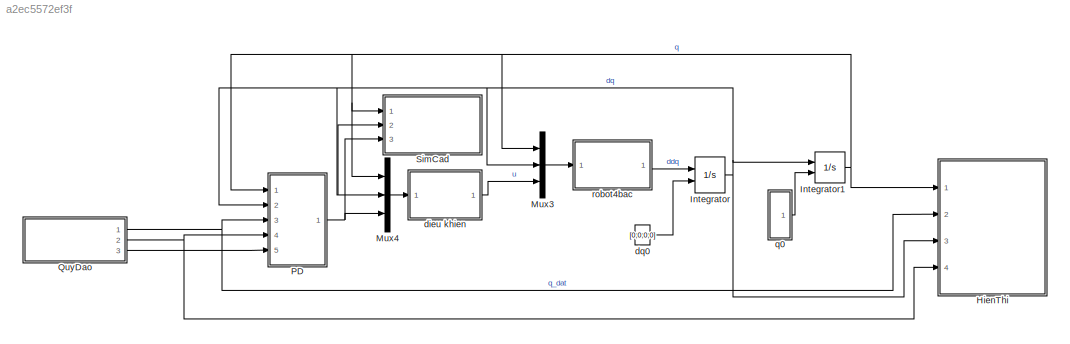
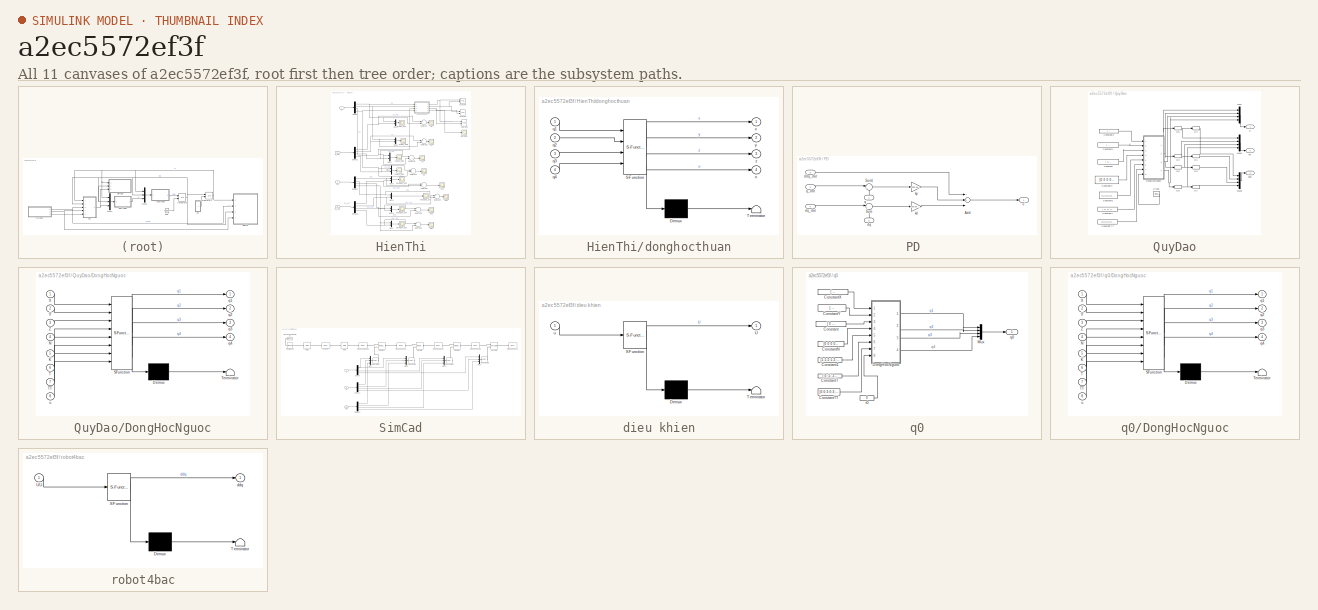
[diagram: thumbnail index - all 11 canvases of the model, root first then tree order]
MODEL slx_a2ec5572ef3f
KIND model
CONFIG AbsTol = auto
CONFIG FixedStep = auto
CONFIG MaxStep = auto
CONFIG MinStep = auto
CONFIG RelTol = 1e-3
CONFIG SampleTimeConstraint = Unconstrained
CONFIG Solver = VariableStepAuto
CONFIG SolverMode = Auto
CONFIG SolverName = VariableStepAuto
CONFIG StartTime = 0.0
CONFIG StopTime = 160
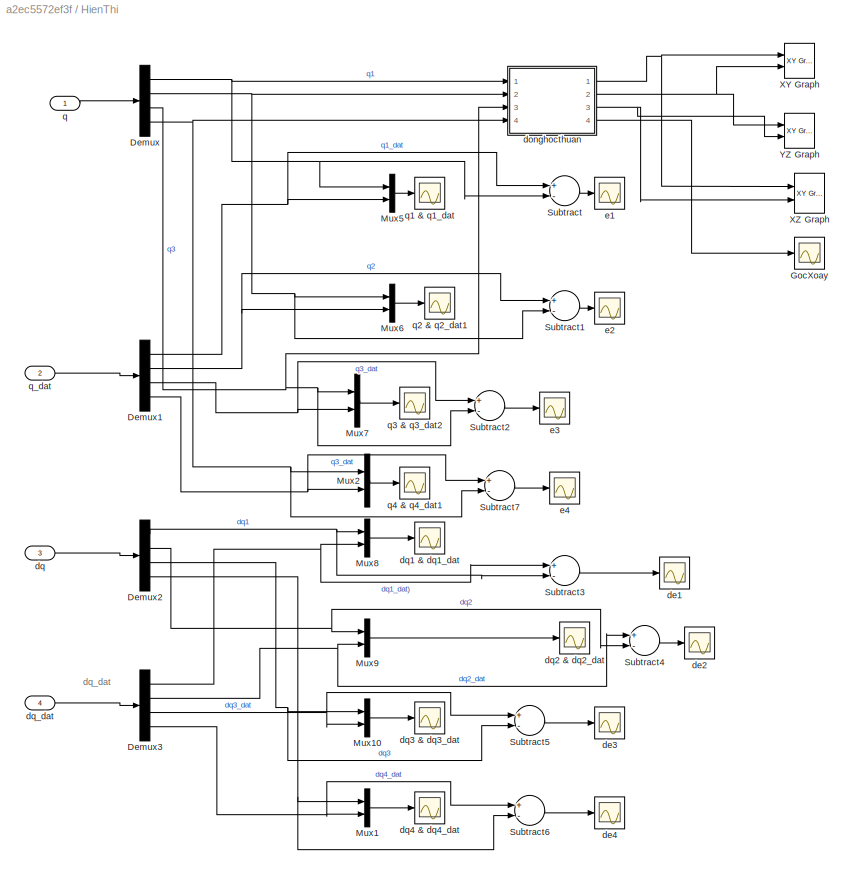
BLOCK [SubSystem] HienThi
  Ports = [4]
  RequestExecContextInheritance = off
  TreatAsAtomicUnit = on
  Variant = off
BLOCK [Demux] HienThi/Demux
  DisplayOption = bar
  Ports = [1, 4]
BLOCK [Demux] HienThi/Demux1
  DisplayOption = bar
  Ports = [1, 4]
BLOCK [Demux] HienThi/Demux2
  DisplayOption = bar
  Ports = [1, 4]
BLOCK [Demux] HienThi/Demux3
  DisplayOption = bar
  Ports = [1, 4]
BLOCK [Scope] HienThi/GocXoay
  Ports = [1]
  ScopeSpecificationString = Simulink.scopes.TimeScopeBlockCfg('CurrentConfiguration', extmgr.ConfigurationSet(extmgr.Configuration('Core','General UI',true,'FigureColor',[1 1 1]),extmgr.Configuration('Core','Source UI',true),extmgr.Configuration('Sources','WiredSimulink',true,'DataLoggingVariableName','ScopeData15','DataLoggingLimitDataPoints',true,'DataLoggingSaveFormat','Array','DataLoggingDecimation','1','DataLoggingDecim...<+1558ch>
BLOCK [Mux] HienThi/Mux1
  DisplayOption = bar
  Inputs = 2
  Ports = [2, 1]
BLOCK [Mux] HienThi/Mux10
  DisplayOption = bar
  Inputs = 2
  Ports = [2, 1]
BLOCK [Mux] HienThi/Mux2
  DisplayOption = bar
  Inputs = 2
  Ports = [2, 1]
BLOCK [Mux] HienThi/Mux5
  DisplayOption = bar
  Inputs = 2
  Ports = [2, 1]
BLOCK [Mux] HienThi/Mux6
  DisplayOption = bar
  Inputs = 2
  Ports = [2, 1]
BLOCK [Mux] HienThi/Mux7
  DisplayOption = bar
  Inputs = 2
  Ports = [2, 1]
BLOCK [Mux] HienThi/Mux8
  DisplayOption = bar
  Inputs = 2
  Ports = [2, 1]
BLOCK [Mux] HienThi/Mux9
  DisplayOption = bar
  Inputs = 2
  Ports = [2, 1]
BLOCK [Sum] HienThi/Subtract
  InputSameDT = off
  Inputs = +-
  OutDataTypeStr = Inherit: Inherit via internal rule
  Ports = [2, 1]
  SaturateOnIntegerOverflow = off
BLOCK [Sum] HienThi/Subtract1
  InputSameDT = off
  Inputs = +-
  OutDataTypeStr = Inherit: Inherit via internal rule
  Ports = [2, 1]
  SaturateOnIntegerOverflow = off
BLOCK [Sum] HienThi/Subtract2
  InputSameDT = off
  Inputs = +-
  OutDataTypeStr = Inherit: Inherit via internal rule
  Ports = [2, 1]
  SaturateOnIntegerOverflow = off
BLOCK [Sum] HienThi/Subtract3
  InputSameDT = off
  Inputs = +-
  OutDataTypeStr = Inherit: Inherit via internal rule
  Ports = [2, 1]
  SaturateOnIntegerOverflow = off
BLOCK [Sum] HienThi/Subtract4
  InputSameDT = off
  Inputs = +-
  OutDataTypeStr = Inherit: Inherit via internal rule
  Ports = [2, 1]
  SaturateOnIntegerOverflow = off
BLOCK [Sum] HienThi/Subtract5
  InputSameDT = off
  Inputs = +-
  OutDataTypeStr = Inherit: Inherit via internal rule
  Ports = [2, 1]
  SaturateOnIntegerOverflow = off
BLOCK [Sum] HienThi/Subtract6
  InputSameDT = off
  Inputs = +-
  OutDataTypeStr = Inherit: Inherit via internal rule
  Ports = [2, 1]
  SaturateOnIntegerOverflow = off
BLOCK [Sum] HienThi/Subtract7
  InputSameDT = off
  Inputs = +-
  OutDataTypeStr = Inherit: Inherit via internal rule
  Ports = [2, 1]
  SaturateOnIntegerOverflow = off
BLOCK [Reference] HienThi/XY Graph  REF=simulink/Sinks/XY Graph
  Ports = [2]
  SourceBlock = simulink/Sinks/XY Graph
  SourceType = XY scope.
BLOCK [Reference] HienThi/XZ Graph  REF=simulink/Sinks/XY Graph
  Ports = [2]
  SourceBlock = simulink/Sinks/XY Graph
  SourceType = XY scope.
BLOCK [Reference] HienThi/YZ Graph  REF=simulink/Sinks/XY Graph
  Ports = [2]
  SourceBlock = simulink/Sinks/XY Graph
  SourceType = XY scope.
BLOCK [Scope] HienThi/de1
  Ports = [1]
  ScopeSpecificationString = Simulink.scopes.TimeScopeBlockCfg('CurrentConfiguration', extmgr.ConfigurationSet(extmgr.Configuration('Core','General UI',true),extmgr.Configuration('Core','Source UI',true),extmgr.Configuration('Sources','WiredSimulink',true,'DataLoggingVariableName','ScopeData4','DataLoggingLimitDataPoints',true,'DataLoggingSaveFormat','Array','DataLoggingDecimation','1','DataLoggingDecimateData',true),extmgr.C...<+1493ch>
BLOCK [Scope] HienThi/de2
  Ports = [1]
  ScopeSpecificationString = Simulink.scopes.TimeScopeBlockCfg('CurrentConfiguration', extmgr.ConfigurationSet(extmgr.Configuration('Core','General UI',true,'FigureColor',[1 1 1]),extmgr.Configuration('Core','Source UI',true),extmgr.Configuration('Sources','WiredSimulink',true,'DataLoggingVariableName','ScopeData5','DataLoggingSaveFormat','StructureWithTime','DataLoggingDecimation','1','DataLoggingDecimateData',true),extmgr.C...<+2720ch>
BLOCK [Scope] HienThi/de3
  Ports = [1]
  ScopeSpecificationString = Simulink.scopes.TimeScopeBlockCfg('CurrentConfiguration', extmgr.ConfigurationSet(extmgr.Configuration('Core','General UI',true,'FigureColor',[1 1 1]),extmgr.Configuration('Core','Source UI',true),extmgr.Configuration('Sources','WiredSimulink',true,'DataLoggingVariableName','ScopeData6','DataLoggingSaveFormat','StructureWithTime','DataLoggingDecimation','1','DataLoggingDecimateData',true),extmgr.C...<+2721ch>
BLOCK [Scope] HienThi/de4
  Ports = [1]
  ScopeSpecificationString = Simulink.scopes.TimeScopeBlockCfg('CurrentConfiguration', extmgr.ConfigurationSet(extmgr.Configuration('Core','General UI',true,'FigureColor',[1 1 1]),extmgr.Configuration('Core','Source UI',true),extmgr.Configuration('Sources','WiredSimulink',true,'DataLoggingVariableName','ScopeData16','DataLoggingSaveFormat','StructureWithTime','DataLoggingDecimation','1','DataLoggingDecimateData',true),extmgr....<+2722ch>
BLOCK [SubSystem] HienThi/donghocthuan
  ErrorFcn = Stateflow.Translate.translate
  PermitHierarchicalResolution = ExplicitOnly
  Ports = [4, 4]
  RequestExecContextInheritance = off
  SFBlockType = MATLAB Function
  TreatAsAtomicUnit = on
  Variant = off
BLOCK [Demux] HienThi/donghocthuan/ Demux 
  Outputs = 1
  Ports = [1, 1]
BLOCK [S-Function] HienThi/donghocthuan/ SFunction 
  EnableBusSupport = on
  FunctionName = sf_sfun
  PortCounts = [4 5]
  Ports = [4, 5]
  SFunctionDeploymentMode = off
  Tag = Stateflow S-Function MoPhongRBKC 1
BLOCK [Terminator] HienThi/donghocthuan/ Terminator 
BLOCK [Outport] HienThi/donghocthuan/n
  IconDisplay = Port number
  Port = 4
BLOCK [Inport] HienThi/donghocthuan/q1
  IconDisplay = Port number
BLOCK [Inport] HienThi/donghocthuan/q2
  IconDisplay = Port number
  Port = 2
BLOCK [Inport] HienThi/donghocthuan/q3
  IconDisplay = Port number
  Port = 3
BLOCK [Inport] HienThi/donghocthuan/q4
  IconDisplay = Port number
  Port = 4
BLOCK [Outport] HienThi/donghocthuan/x
  IconDisplay = Port number
BLOCK [Outport] HienThi/donghocthuan/y
  IconDisplay = Port number
  Port = 2
BLOCK [Outport] HienThi/donghocthuan/z
  IconDisplay = Port number
  Port = 3
BLOCK [Inport] HienThi/dq
  IconDisplay = Port number
  Port = 3
BLOCK [Scope] HienThi/dq1 & dq1_dat
  Ports = [1]
  ScopeSpecificationString = Simulink.scopes.TimeScopeBlockCfg('CurrentConfiguration', extmgr.ConfigurationSet(extmgr.Configuration('Core','General UI',true),extmgr.Configuration('Core','Source UI',true),extmgr.Configuration('Sources','WiredSimulink',true,'DataLoggingVariableName','ScopeData7','DataLoggingLimitDataPoints',true,'DataLoggingSaveFormat','Array','DataLoggingDecimation','1','DataLoggingDecimateData',true),extmgr.C...<+1503ch>
BLOCK [Scope] HienThi/dq2 & dq2_dat
  Ports = [1]
  ScopeSpecificationString = Simulink.scopes.TimeScopeBlockCfg('CurrentConfiguration', extmgr.ConfigurationSet(extmgr.Configuration('Core','General UI',true,'FigureColor',[1 1 1]),extmgr.Configuration('Core','Source UI',true),extmgr.Configuration('Sources','WiredSimulink',true,'DataLoggingVariableName','ScopeData8','DataLoggingSaveFormat','StructureWithTime','DataLoggingDecimation','1','DataLoggingDecimateData',true),extmgr.C...<+2770ch>
BLOCK [Scope] HienThi/dq3 & dq3_dat
  Ports = [1]
  ScopeSpecificationString = Simulink.scopes.TimeScopeBlockCfg('CurrentConfiguration', extmgr.ConfigurationSet(extmgr.Configuration('Core','General UI',true),extmgr.Configuration('Core','Source UI',true),extmgr.Configuration('Sources','WiredSimulink',true,'DataLoggingVariableName','ScopeData9','DataLoggingLimitDataPoints',true,'DataLoggingSaveFormat','Array','DataLoggingDecimation','1','DataLoggingDecimateData',true),extmgr.C...<+1524ch>
BLOCK [Scope] HienThi/dq4 & dq4_dat
  Ports = [1]
  ScopeSpecificationString = Simulink.scopes.TimeScopeBlockCfg('CurrentConfiguration', extmgr.ConfigurationSet(extmgr.Configuration('Core','General UI',true),extmgr.Configuration('Core','Source UI',true),extmgr.Configuration('Sources','WiredSimulink',true,'DataLoggingVariableName','ScopeData17','DataLoggingLimitDataPoints',true,'DataLoggingSaveFormat','Array','DataLoggingDecimation','1','DataLoggingDecimateData',true),extmgr....<+1631ch>
BLOCK [Inport] HienThi/dq_dat
  IconDisplay = Port number
  Port = 4
BLOCK [Scope] HienThi/e1
  Ports = [1]
  ScopeSpecificationString = Simulink.scopes.TimeScopeBlockCfg('CurrentConfiguration', extmgr.ConfigurationSet(extmgr.Configuration('Core','General UI',true,'FigureColor',[1 1 1]),extmgr.Configuration('Core','Source UI',true),extmgr.Configuration('Sources','WiredSimulink',true,'DataLoggingVariableName','ScopeData10','DataLoggingLimitDataPoints',true,'DataLoggingSaveFormat','Array','DataLoggingDecimation','1','DataLoggingDecim...<+1529ch>
BLOCK [Scope] HienThi/e2
  Ports = [1]
  ScopeSpecificationString = Simulink.scopes.TimeScopeBlockCfg('CurrentConfiguration', extmgr.ConfigurationSet(extmgr.Configuration('Core','General UI',true,'FigureColor',[1 1 1]),extmgr.Configuration('Core','Source UI',true),extmgr.Configuration('Sources','WiredSimulink',true,'DataLoggingVariableName','ScopeData11','DataLoggingLimitDataPoints',true,'DataLoggingSaveFormat','Array','DataLoggingDecimation','1','DataLoggingDecim...<+1616ch>
BLOCK [Scope] HienThi/e3
  Ports = [1]
  ScopeSpecificationString = Simulink.scopes.TimeScopeBlockCfg('CurrentConfiguration', extmgr.ConfigurationSet(extmgr.Configuration('Core','General UI',true,'FigureColor',[1 1 1]),extmgr.Configuration('Core','Source UI',true),extmgr.Configuration('Sources','WiredSimulink',true,'DataLoggingVariableName','ScopeData1','DataLoggingLimitDataPoints',true,'DataLoggingSaveFormat','Array','DataLoggingDecimation','1','DataLoggingDecima...<+1615ch>
BLOCK [Scope] HienThi/e4
  Ports = [1]
  ScopeSpecificationString = Simulink.scopes.TimeScopeBlockCfg('CurrentConfiguration', extmgr.ConfigurationSet(extmgr.Configuration('Core','General UI',true,'FigureColor',[1 1 1]),extmgr.Configuration('Core','Source UI',true),extmgr.Configuration('Sources','WiredSimulink',true,'DataLoggingVariableName','ScopeData18','DataLoggingSaveFormat','StructureWithTime','DataLoggingDecimation','1','DataLoggingDecimateData',true),extmgr....<+2722ch>
BLOCK [Inport] HienThi/q
  IconDisplay = Port number
BLOCK [Scope] HienThi/q1 & q1_dat
  Ports = [1]
  ScopeSpecificationString = Simulink.scopes.TimeScopeBlockCfg('CurrentConfiguration', extmgr.ConfigurationSet(extmgr.Configuration('Core','General UI',true,'FigureColor',[1 1 1]),extmgr.Configuration('Core','Source UI',true),extmgr.Configuration('Sources','WiredSimulink',true,'DataLoggingVariableName','ScopeData13','DataLoggingLimitDataPoints',true,'DataLoggingSaveFormat','Array','DataLoggingDecimation','1','DataLoggingDecim...<+1697ch>
BLOCK [Scope] HienThi/q2 & q2_dat1
  Ports = [1]
  ScopeSpecificationString = Simulink.scopes.TimeScopeBlockCfg('CurrentConfiguration', extmgr.ConfigurationSet(extmgr.Configuration('Core','General UI',true,'FigureColor',[1 1 1]),extmgr.Configuration('Core','Source UI',true),extmgr.Configuration('Sources','WiredSimulink',true,'DataLoggingVariableName','ScopeData1','DataLoggingLimitDataPoints',true,'DataLoggingSaveFormat','Array','DataLoggingDecimation','1','DataLoggingDecima...<+1715ch>
BLOCK [Scope] HienThi/q3 & q3_dat2
  Ports = [1]
  ScopeSpecificationString = Simulink.scopes.TimeScopeBlockCfg('CurrentConfiguration', extmgr.ConfigurationSet(extmgr.Configuration('Core','General UI',true,'FigureColor',[1 1 1]),extmgr.Configuration('Core','Source UI',true),extmgr.Configuration('Sources','WiredSimulink',true,'DataLoggingVariableName','ScopeData2','DataLoggingLimitDataPoints',true,'DataLoggingSaveFormat','Array','DataLoggingDecimation','1','DataLoggingDecima...<+1677ch>
BLOCK [Scope] HienThi/q4 & q4_dat1
  Ports = [1]
  ScopeSpecificationString = Simulink.scopes.TimeScopeBlockCfg('CurrentConfiguration', extmgr.ConfigurationSet(extmgr.Configuration('Core','General UI',true),extmgr.Configuration('Core','Source UI',true),extmgr.Configuration('Sources','WiredSimulink',true,'DataLoggingVariableName','ScopeData3','DataLoggingLimitDataPoints',true,'DataLoggingSaveFormat','Array','DataLoggingDecimation','1','DataLoggingDecimateData',true),extmgr.C...<+1501ch>
BLOCK [Inport] HienThi/q_dat
  IconDisplay = Port number
  Port = 2
BLOCK [Integrator] Integrator
  InitialConditionSource = external
  Ports = [2, 1]
BLOCK [Integrator] Integrator1
  InitialConditionSource = external
  Ports = [2, 1]
BLOCK [Mux] Mux3
  DisplayOption = bar
  Inputs = 3
  Ports = [3, 1]
BLOCK [Mux] Mux4
  DisplayOption = bar
  Inputs = 3
  Ports = [3, 1]
BLOCK [SubSystem] PD 
  Ports = [5, 1]
  RequestExecContextInheritance = off
  Variant = off
BLOCK [Sum] PD /Add
  InputSameDT = off
  Inputs = 3
  OutDataTypeStr = Inherit: Inherit via internal rule
  Ports = [3, 1]
  SaturateOnIntegerOverflow = off
BLOCK [Sum] PD /Sum
  IconShape = round
  InputSameDT = off
  Inputs = |+-
  OutDataTypeStr = Inherit: Inherit via internal rule
  Ports = [2, 1]
  SaturateOnIntegerOverflow = off
BLOCK [Sum] PD /Sum1
  IconShape = round
  InputSameDT = off
  Inputs = |+-
  OutDataTypeStr = Inherit: Inherit via internal rule
  Ports = [2, 1]
  SaturateOnIntegerOverflow = off
BLOCK [Inport] PD /ddq_dat
  IconDisplay = Port number
  Port = 5
BLOCK [Inport] PD /dq
  IconDisplay = Port number
  Port = 2
BLOCK [Inport] PD /dq_dat
  IconDisplay = Port number
  Port = 4
BLOCK [Gain] PD /kd
  Gain = [50 50 50 50]
  OutDataTypeStr = Inherit: Inherit via internal rule
  ParamDataTypeStr = Inherit: Inherit via internal rule
  SaturateOnIntegerOverflow = off
BLOCK [Gain] PD /kp
  Gain = [625 625 625 625]
  OutDataTypeStr = Inherit: Inherit via internal rule
  ParamDataTypeStr = Inherit: Inherit via internal rule
  SaturateOnIntegerOverflow = off
BLOCK [Inport] PD /q
  IconDisplay = Port number
BLOCK [Inport] PD /q_dat
  IconDisplay = Port number
  Port = 3
BLOCK [Outport] PD /u'
  IconDisplay = Port number
BLOCK [SubSystem] QuyDao
  Ports = [0, 3]
  RequestExecContextInheritance = off
  TreatAsAtomicUnit = on
  Variant = off
BLOCK [Clock] QuyDao/Clock
  Decimation = 600
BLOCK [Constant] QuyDao/Constant
  Value = [     0                0               -6              0.8                0                0;   -50                0                0                0                0                0;   -50                0                0                0              -50                0;   -50                0                0                0                0                0;   -50                0        ...<+889ch>
BLOCK [Constant] QuyDao/Constant1
  Value = [1;1;2;1;2;1;1;2;1;1;1;1;1;1]
BLOCK [Constant] QuyDao/ConstantN
  Value = [0  0  0  0;0  0  0  0;0  0  0  0;0  0  0  0;0  0  0  0;0  0  0  0;0  0  0  0;0  0  0  0;0  0  0  0;0  0  0  0;0  0  0  0;0  0  0  0;0  0  0  0;0  0  0  0]
BLOCK [Constant] QuyDao/ConstantT
  Value = [  0;  5; 20; 40; 50; 70; 80; 90;100;110;120;130;140;150;160]
BLOCK [Constant] QuyDao/ConstantTT
  Value = [0;0;3;0;3;0;0;3;0;0;0;0;0;0]
BLOCK [Constant] QuyDao/ConstantX
  Value = [           0                0                0                0                0                0; 15.27777778     -6.666666667     0.8333333333   -0.02222222222                0                0; 14.13716694     -1.884955592    0.07068583471 -0.0007853981634               75             37.5;     31792.5            -2160             48.6            -0.36                0                0; 155.50...<+973ch>
BLOCK [Constant] QuyDao/ConstantY
  Value = [           0                0                0                0                0                0;           0                0                0                0                0                0; 14.13716694     -1.884955592    0.07068583471 -0.0007853981634                0             37.5;           0                0                0                0                0                0; 155.50...<+973ch>
BLOCK [Derivative] QuyDao/D1
BLOCK [Derivative] QuyDao/D2
BLOCK [Derivative] QuyDao/D3
BLOCK [Derivative] QuyDao/D4
BLOCK [Derivative] QuyDao/D5
BLOCK [Derivative] QuyDao/D6
BLOCK [Derivative] QuyDao/D7
BLOCK [Derivative] QuyDao/D8
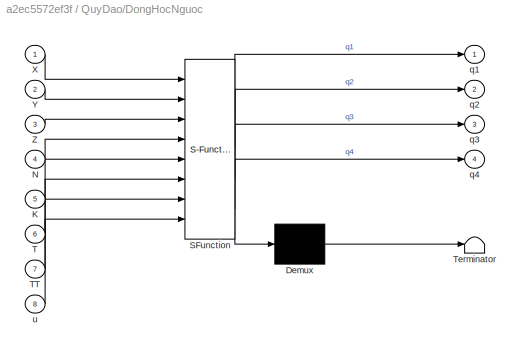
BLOCK [SubSystem] QuyDao/DongHocNguoc
  ErrorFcn = Stateflow.Translate.translate
  PermitHierarchicalResolution = ExplicitOnly
  Ports = [8, 4]
  RequestExecContextInheritance = off
  SFBlockType = MATLAB Function
  TreatAsAtomicUnit = on
  Variant = off
BLOCK [Demux] QuyDao/DongHocNguoc/ Demux 
  Outputs = 1
  Ports = [1, 1]
BLOCK [S-Function] QuyDao/DongHocNguoc/ SFunction 
  EnableBusSupport = on
  FunctionName = sf_sfun
  PortCounts = [8 5]
  Ports = [8, 5]
  SFunctionDeploymentMode = off
  Tag = Stateflow S-Function MoPhongRBKC 2
BLOCK [Terminator] QuyDao/DongHocNguoc/ Terminator 
BLOCK [Inport] QuyDao/DongHocNguoc/K
  IconDisplay = Port number
  Port = 5
BLOCK [Inport] QuyDao/DongHocNguoc/N
  IconDisplay = Port number
  Port = 4
BLOCK [Inport] QuyDao/DongHocNguoc/T
  IconDisplay = Port number
  Port = 6
BLOCK [Inport] QuyDao/DongHocNguoc/TT
  IconDisplay = Port number
  Port = 7
BLOCK [Inport] QuyDao/DongHocNguoc/X
  IconDisplay = Port number
BLOCK [Inport] QuyDao/DongHocNguoc/Y
  IconDisplay = Port number
  Port = 2
BLOCK [Inport] QuyDao/DongHocNguoc/Z
  IconDisplay = Port number
  Port = 3
BLOCK [Outport] QuyDao/DongHocNguoc/q1
  IconDisplay = Port number
BLOCK [Outport] QuyDao/DongHocNguoc/q2
  IconDisplay = Port number
  Port = 2
BLOCK [Outport] QuyDao/DongHocNguoc/q3
  IconDisplay = Port number
  Port = 3
BLOCK [Outport] QuyDao/DongHocNguoc/q4
  IconDisplay = Port number
  Port = 4
BLOCK [Inport] QuyDao/DongHocNguoc/u
  IconDisplay = Port number
  Port = 8
BLOCK [Mux] QuyDao/Mux
  DisplayOption = bar
  Ports = [4, 1]
BLOCK [Mux] QuyDao/Mux1
  DisplayOption = bar
  Ports = [4, 1]
BLOCK [Mux] QuyDao/Mux2
  DisplayOption = bar
  Ports = [4, 1]
BLOCK [Outport] QuyDao/ddq
  IconDisplay = Port number
  Port = 3
BLOCK [Outport] QuyDao/dq
  IconDisplay = Port number
  Port = 2
BLOCK [Outport] QuyDao/q
  IconDisplay = Port number
BLOCK [SubSystem] SimCad
  Ports = [3]
  RequestExecContextInheritance = off
  TreatAsAtomicUnit = on
  Variant = off
BLOCK [Demux] SimCad/Demux
  DisplayOption = bar
  Ports = [1, 4]
BLOCK [Demux] SimCad/Demux1
  DisplayOption = bar
  Ports = [1, 4]
BLOCK [Demux] SimCad/Demux2
  DisplayOption = bar
  Ports = [1, 4]
BLOCK [Reference] SimCad/Joint Actuator  REF=mblibv1/Sensors & 
Actuators/Joint Actuator
  Ports = [1, 0, 0, 0, 0, 0, 1]
  SourceBlock = mblibv1/Sensors & \nActuators/Joint Actuator
  SourceType = Joint Actuator
BLOCK [Reference] SimCad/Joint Actuator1  REF=mblibv1/Sensors & 
Actuators/Joint Actuator
  Ports = [1, 0, 0, 0, 0, 0, 1]
  SourceBlock = mblibv1/Sensors & \nActuators/Joint Actuator
  SourceType = Joint Actuator
BLOCK [Reference] SimCad/Joint Actuator2  REF=mblibv1/Sensors & 
Actuators/Joint Actuator
  Ports = [1, 0, 0, 0, 0, 0, 1]
  SourceBlock = mblibv1/Sensors & \nActuators/Joint Actuator
  SourceType = Joint Actuator
BLOCK [Reference] SimCad/Joint Actuator3  REF=mblibv1/Sensors & 
Actuators/Joint Actuator
  Ports = [1, 0, 0, 0, 0, 0, 1]
  SourceBlock = mblibv1/Sensors & \nActuators/Joint Actuator
  SourceType = Joint Actuator
BLOCK [Reference] SimCad/Machine Environment  REF=mblibv1/Bodies/Machine
Environment
  Ports = [0, 0, 0, 0, 0, 0, 1]
  SourceBlock = mblibv1/Bodies/Machine\nEnvironment
  SourceType = Machine Environment
BLOCK [Mux] SimCad/Mux
  DisplayOption = bar
  Inputs = 3
  Ports = [3, 1]
BLOCK [Mux] SimCad/Mux1
  DisplayOption = bar
  Inputs = 3
  Ports = [3, 1]
BLOCK [Mux] SimCad/Mux2
  DisplayOption = bar
  Inputs = 3
  Ports = [3, 1]
BLOCK [Mux] SimCad/Mux3
  DisplayOption = bar
  Inputs = 3
  Ports = [3, 1]
BLOCK [Reference] SimCad/Prismatic  REF=mblibv1/Joints/Prismatic
  Ports = [0, 0, 0, 0, 0, 2, 1]
  SourceBlock = mblibv1/Joints/Prismatic
  SourceType = Prismatic
BLOCK [Reference] SimCad/Prismatic1  REF=mblibv1/Joints/Prismatic
  Ports = [0, 0, 0, 0, 0, 2, 1]
  SourceBlock = mblibv1/Joints/Prismatic
  SourceType = Prismatic
BLOCK [Reference] SimCad/Prismatic2  REF=mblibv1/Joints/Prismatic
  Ports = [0, 0, 0, 0, 0, 2, 1]
  SourceBlock = mblibv1/Joints/Prismatic
  SourceType = Prismatic
BLOCK [Reference] SimCad/RBS.01.KhauDe-2  REF=mblibv1/Bodies/Body
  Ports = [0, 0, 0, 0, 0, 1, 1]
  SourceBlock = mblibv1/Bodies/Body
  SourceType = Body
BLOCK [Reference] SimCad/RBS.02.Khau1-1  REF=mblibv1/Bodies/Body
  Ports = [0, 0, 0, 0, 0, 1, 1]
  SourceBlock = mblibv1/Bodies/Body
  SourceType = Body
BLOCK [Reference] SimCad/RBS.03.Khau2-2  REF=mblibv1/Bodies/Body
  Ports = [0, 0, 0, 0, 0, 1, 1]
  SourceBlock = mblibv1/Bodies/Body
  SourceType = Body
BLOCK [Reference] SimCad/RBS.04.Khau3-2  REF=mblibv1/Bodies/Body
  Ports = [0, 0, 0, 0, 0, 1, 1]
  SourceBlock = mblibv1/Bodies/Body
  SourceType = Body
BLOCK [Reference] SimCad/RBS.05-Khau4-1  REF=mblibv1/Bodies/Body
  Ports = [0, 0, 0, 0, 0, 1]
  SourceBlock = mblibv1/Bodies/Body
  SourceType = Body
BLOCK [Reference] SimCad/Revolute  REF=mblibv1/Joints/Revolute
  Ports = [0, 0, 0, 0, 0, 2, 1]
  SourceBlock = mblibv1/Joints/Revolute
  SourceType = Revolute
BLOCK [Reference] SimCad/RootGround  REF=mblibv1/Bodies/Ground
  Ports = [0, 0, 0, 0, 0, 1, 1]
  SourceBlock = mblibv1/Bodies/Ground
  SourceType = Ground
  UserDataPersistent = on
BLOCK [Reference] SimCad/RootPart  REF=mblibv1/Bodies/Body
  Ports = [0, 0, 0, 0, 0, 1, 1]
  SourceBlock = mblibv1/Bodies/Body
  SourceType = Body
BLOCK [Reference] SimCad/Weld  REF=mblibv1/Joints/Weld
  Ports = [0, 0, 0, 0, 0, 1, 1]
  SourceBlock = mblibv1/Joints/Weld
  SourceType = Weld
BLOCK [Reference] SimCad/Weld1  REF=mblibv1/Joints/Weld
  Ports = [0, 0, 0, 0, 0, 1, 1]
  SourceBlock = mblibv1/Joints/Weld
  SourceType = Weld
BLOCK [Inport] SimCad/ddq
  IconDisplay = Port number
  Port = 3
BLOCK [Inport] SimCad/dq
  IconDisplay = Port number
  Port = 2
BLOCK [Inport] SimCad/q
  IconDisplay = Port number
BLOCK [SubSystem] dieu khien
  ErrorFcn = Stateflow.Translate.translate
  PermitHierarchicalResolution = ExplicitOnly
  Ports = [1, 1]
  RequestExecContextInheritance = off
  SFBlockType = MATLAB Function
  TreatAsAtomicUnit = on
  Variant = off
BLOCK [Demux] dieu khien/ Demux 
  Outputs = 1
  Ports = [1, 1]
BLOCK [S-Function] dieu khien/ SFunction 
  EnableBusSupport = on
  FunctionName = sf_sfun
  PortCounts = [1 2]
  Ports = [1, 2]
  SFunctionDeploymentMode = off
  Tag = Stateflow S-Function MoPhongRBKC 4
BLOCK [Terminator] dieu khien/ Terminator 
BLOCK [Outport] dieu khien/U
  IconDisplay = Port number
BLOCK [Inport] dieu khien/u
  IconDisplay = Port number
BLOCK [Constant] dq0
  Value = [0;0;0;0]
BLOCK [SubSystem] q0
  Ports = [0, 1]
  RequestExecContextInheritance = off
  Variant = off
BLOCK [Constant] q0/Constant
  Value = [     0                0               -6              0.8                0                0;   -50                0                0                0                0                0;   -50                0                0                0              -50                0;   -50                0                0                0                0                0;   -50                0        ...<+889ch>
BLOCK [Constant] q0/Constant1
  Value = [1;1;2;1;2;1;1;2;1;1;1;1;1;1]
BLOCK [Constant] q0/ConstantN
  Value = [0  0  0  0;0  0  0  0;0  0  0  0;0  0  0  0;0  0  0  0;0  0  0  0;0  0  0  0;0  0  0  0;0  0  0  0;0  0  0  0;0  0  0  0;0  0  0  0;0  0  0  0;0  0  0  0]
BLOCK [Constant] q0/ConstantT
  Value = [  0;  5; 20; 40; 50; 70; 80; 90;100;110;120;130;140;150;160]
BLOCK [Constant] q0/ConstantTT
  Value = [0;0;3;0;3;0;0;3;0;0;0;0;0;0]
BLOCK [Constant] q0/ConstantX
  Value = [           0                0                0                0                0                0; 15.27777778     -6.666666667     0.8333333333   -0.02222222222                0                0; 14.13716694     -1.884955592    0.07068583471 -0.0007853981634               75             37.5;     31792.5            -2160             48.6            -0.36                0                0; 155.50...<+973ch>
BLOCK [Constant] q0/ConstantY
  Value = [           0                0                0                0                0                0;           0                0                0                0                0                0; 14.13716694     -1.884955592    0.07068583471 -0.0007853981634                0             37.5;           0                0                0                0                0                0; 155.50...<+973ch>
BLOCK [SubSystem] q0/DongHocNguoc
  ErrorFcn = Stateflow.Translate.translate
  PermitHierarchicalResolution = ExplicitOnly
  Ports = [8, 4]
  RequestExecContextInheritance = off
  SFBlockType = MATLAB Function
  TreatAsAtomicUnit = on
  Variant = off
BLOCK [Demux] q0/DongHocNguoc/ Demux 
  Outputs = 1
  Ports = [1, 1]
BLOCK [S-Function] q0/DongHocNguoc/ SFunction 
  EnableBusSupport = on
  FunctionName = sf_sfun
  PortCounts = [8 5]
  Ports = [8, 5]
  SFunctionDeploymentMode = off
  Tag = Stateflow S-Function MoPhongRBKC 3
BLOCK [Terminator] q0/DongHocNguoc/ Terminator 
BLOCK [Inport] q0/DongHocNguoc/K
  IconDisplay = Port number
  Port = 5
BLOCK [Inport] q0/DongHocNguoc/N
  IconDisplay = Port number
  Port = 4
BLOCK [Inport] q0/DongHocNguoc/T
  IconDisplay = Port number
  Port = 6
BLOCK [Inport] q0/DongHocNguoc/TT
  IconDisplay = Port number
  Port = 7
BLOCK [Inport] q0/DongHocNguoc/X
  IconDisplay = Port number
BLOCK [Inport] q0/DongHocNguoc/Y
  IconDisplay = Port number
  Port = 2
BLOCK [Inport] q0/DongHocNguoc/Z
  IconDisplay = Port number
  Port = 3
BLOCK [Outport] q0/DongHocNguoc/q1
  IconDisplay = Port number
BLOCK [Outport] q0/DongHocNguoc/q2
  IconDisplay = Port number
  Port = 2
BLOCK [Outport] q0/DongHocNguoc/q3
  IconDisplay = Port number
  Port = 3
BLOCK [Outport] q0/DongHocNguoc/q4
  IconDisplay = Port number
  Port = 4
BLOCK [Inport] q0/DongHocNguoc/u
  IconDisplay = Port number
  Port = 8
BLOCK [Mux] q0/Mux
  DisplayOption = bar
  Ports = [4, 1]
BLOCK [Outport] q0/q0 
  IconDisplay = Port number
BLOCK [Constant] q0/t0
  Value = 0
BLOCK [SubSystem] robot4bac
  ErrorFcn = Stateflow.Translate.translate
  PermitHierarchicalResolution = ExplicitOnly
  Ports = [1, 1]
  RequestExecContextInheritance = off
  SFBlockType = MATLAB Function
  TreatAsAtomicUnit = on
  Variant = off
BLOCK [Demux] robot4bac/ Demux 
  Outputs = 1
  Ports = [1, 1]
BLOCK [S-Function] robot4bac/ SFunction 
  EnableBusSupport = on
  FunctionName = sf_sfun
  PortCounts = [1 2]
  Ports = [1, 2]
  SFunctionDeploymentMode = off
  Tag = Stateflow S-Function MoPhongRBKC 8
BLOCK [Terminator] robot4bac/ Terminator 
BLOCK [Inport] robot4bac/UU
  IconDisplay = Port number
BLOCK [Outport] robot4bac/ddq
  IconDisplay = Port number
ANNOTATION HienThi: dq_dat
ANNOTATION q0: q4
NET HienThi/Demux1:1 -> HienThi/Mux5:2, HienThi/Subtract:1
NET HienThi/Demux1:2 -> HienThi/Mux6:2, HienThi/Subtract1:1
NET HienThi/Demux1:3 -> HienThi/Mux7:2, HienThi/Subtract2:1
NET HienThi/Demux1:4 -> HienThi/Mux2:2, HienThi/Subtract7:1
NET HienThi/Demux2:1 -> HienThi/Mux8:1, HienThi/Subtract3:2
NET HienThi/Demux2:2 -> HienThi/Mux9:1, HienThi/Subtract4:2
NET HienThi/Demux2:3 -> HienThi/Mux10:1, HienThi/Subtract5:2
NET HienThi/Demux2:4 -> HienThi/Mux1:1, HienThi/Subtract6:2
NET HienThi/Demux3:1 -> HienThi/Mux8:2, HienThi/Subtract3:1
NET HienThi/Demux3:2 -> HienThi/Mux9:2, HienThi/Subtract4:1
NET HienThi/Demux3:3 -> HienThi/Mux10:2, HienThi/Subtract5:1
NET HienThi/Demux3:4 -> HienThi/Mux1:2, HienThi/Subtract6:1
NET HienThi/Demux:1 -> HienThi/Mux5:1, HienThi/Subtract:2, HienThi/donghocthuan:1
NET HienThi/Demux:2 -> HienThi/Mux6:1, HienThi/Subtract1:2, HienThi/donghocthuan:2
NET HienThi/Demux:3 -> HienThi/Mux7:1, HienThi/Subtract2:2, HienThi/donghocthuan:3
NET HienThi/Demux:4 -> HienThi/Mux2:1, HienThi/Subtract7:2, HienThi/donghocthuan:4
LINE HienThi/Mux10:1 -> HienThi/dq3 & dq3_dat:1
LINE HienThi/Mux1:1 -> HienThi/dq4 & dq4_dat:1
LINE HienThi/Mux2:1 -> HienThi/q4 & q4_dat1:1
LINE HienThi/Mux5:1 -> HienThi/q1 & q1_dat:1
LINE HienThi/Mux6:1 -> HienThi/q2 & q2_dat1:1
LINE HienThi/Mux7:1 -> HienThi/q3 & q3_dat2:1
LINE HienThi/Mux8:1 -> HienThi/dq1 & dq1_dat:1
LINE HienThi/Mux9:1 -> HienThi/dq2 & dq2_dat:1
LINE HienThi/Subtract1:1 -> HienThi/e2:1
LINE HienThi/Subtract2:1 -> HienThi/e3:1
LINE HienThi/Subtract3:1 -> HienThi/de1:1
LINE HienThi/Subtract4:1 -> HienThi/de2:1
LINE HienThi/Subtract5:1 -> HienThi/de3:1
LINE HienThi/Subtract6:1 -> HienThi/de4:1
LINE HienThi/Subtract7:1 -> HienThi/e4:1
LINE HienThi/Subtract:1 -> HienThi/e1:1
NET HienThi/donghocthuan:1 -> HienThi/XY Graph:1, HienThi/XZ Graph:1
NET HienThi/donghocthuan:2 -> HienThi/XY Graph:2, HienThi/YZ Graph:1
NET HienThi/donghocthuan:3 -> HienThi/XZ Graph:2, HienThi/YZ Graph:2
LINE HienThi/donghocthuan:4 -> HienThi/GocXoay:1
LINE HienThi/dq:1 -> HienThi/Demux2:1
LINE HienThi/dq_dat:1 -> HienThi/Demux3:1
LINE HienThi/q:1 -> HienThi/Demux:1
LINE HienThi/q_dat:1 -> HienThi/Demux1:1
NET Integrator1:1 -> HienThi:1, Mux3:1, Mux4:1, PD :1, SimCad:1
NET Integrator:1 -> HienThi:3, Integrator1:1, Mux3:2, Mux4:2, PD :2, SimCad:2
LINE Mux3:1 -> robot4bac:1
LINE Mux4:1 -> dieu khien:1
LINE PD /Add:1 -> PD /u':1
LINE PD /Sum1:1 -> PD /kp:1
LINE PD /Sum:1 -> PD /kd:1
LINE PD /ddq_dat:1 -> PD /Add:1
LINE PD /dq:1 -> PD /Sum:2
LINE PD /dq_dat:1 -> PD /Sum:1
LINE PD /kd:1 -> PD /Add:3
LINE PD /kp:1 -> PD /Add:2
LINE PD /q:1 -> PD /Sum1:2
LINE PD /q_dat:1 -> PD /Sum1:1
NET PD :1 -> Mux4:3, SimCad:3
LINE QuyDao/Clock:1 -> QuyDao/DongHocNguoc:8
LINE QuyDao/Constant1:1 -> QuyDao/DongHocNguoc:5
LINE QuyDao/Constant:1 -> QuyDao/DongHocNguoc:3
LINE QuyDao/ConstantN:1 -> QuyDao/DongHocNguoc:4
LINE QuyDao/ConstantT:1 -> QuyDao/DongHocNguoc:6
LINE QuyDao/ConstantTT:1 -> QuyDao/DongHocNguoc:7
LINE QuyDao/ConstantX:1 -> QuyDao/DongHocNguoc:1
LINE QuyDao/ConstantY:1 -> QuyDao/DongHocNguoc:2
LINE QuyDao/D1:1 -> QuyDao/Mux2:2
NET QuyDao/D2:1 -> QuyDao/D1:1, QuyDao/Mux1:2
LINE QuyDao/D3:1 -> QuyDao/Mux2:3
LINE QuyDao/D4:1 -> QuyDao/Mux2:1
NET QuyDao/D5:1 -> QuyDao/D4:1, QuyDao/Mux1:1
NET QuyDao/D6:1 -> QuyDao/D3:1, QuyDao/Mux1:3
LINE QuyDao/D7:1 -> QuyDao/Mux2:4
NET QuyDao/D8:1 -> QuyDao/D7:1, QuyDao/Mux1:4
NET QuyDao/DongHocNguoc:1 -> QuyDao/D5:1, QuyDao/Mux:1
NET QuyDao/DongHocNguoc:2 -> QuyDao/D2:1, QuyDao/Mux:2
NET QuyDao/DongHocNguoc:3 -> QuyDao/D6:1, QuyDao/Mux:3
NET QuyDao/DongHocNguoc:4 -> QuyDao/D8:1, QuyDao/Mux:4
LINE QuyDao/Mux1:1 -> QuyDao/dq:1
LINE QuyDao/Mux2:1 -> QuyDao/ddq:1
LINE QuyDao/Mux:1 -> QuyDao/q:1
NET QuyDao:1 -> HienThi:2, PD :3
NET QuyDao:2 -> HienThi:4, PD :4
LINE QuyDao:3 -> PD :5
LINE SimCad/Demux1:1 -> SimCad/Mux:2
LINE SimCad/Demux1:2 -> SimCad/Mux1:2
LINE SimCad/Demux1:3 -> SimCad/Mux2:2
LINE SimCad/Demux1:4 -> SimCad/Mux3:2
LINE SimCad/Demux2:1 -> SimCad/Mux:3
LINE SimCad/Demux2:2 -> SimCad/Mux1:3
LINE SimCad/Demux2:3 -> SimCad/Mux2:3
LINE SimCad/Demux2:4 -> SimCad/Mux3:3
LINE SimCad/Demux:1 -> SimCad/Mux:1
LINE SimCad/Demux:2 -> SimCad/Mux1:1
LINE SimCad/Demux:3 -> SimCad/Mux2:1
LINE SimCad/Demux:4 -> SimCad/Mux3:1
LINE SimCad/Mux1:1 -> SimCad/Joint Actuator1:1
LINE SimCad/Mux2:1 -> SimCad/Joint Actuator2:1
LINE SimCad/Mux3:1 -> SimCad/Joint Actuator3:1
LINE SimCad/Mux:1 -> SimCad/Joint Actuator:1
LINE SimCad/ddq:1 -> SimCad/Demux2:1
LINE SimCad/dq:1 -> SimCad/Demux1:1
LINE SimCad/q:1 -> SimCad/Demux:1
LINE dieu khien:1 -> Mux3:3
LINE dq0:1 -> Integrator:2
LINE q0/Constant1:1 -> q0/DongHocNguoc:5
LINE q0/Constant:1 -> q0/DongHocNguoc:3
LINE q0/ConstantN:1 -> q0/DongHocNguoc:4
LINE q0/ConstantT:1 -> q0/DongHocNguoc:6
LINE q0/ConstantTT:1 -> q0/DongHocNguoc:7
LINE q0/ConstantX:1 -> q0/DongHocNguoc:1
LINE q0/ConstantY:1 -> q0/DongHocNguoc:2
LINE q0/DongHocNguoc:1 -> q0/Mux:1
LINE q0/DongHocNguoc:2 -> q0/Mux:2
LINE q0/DongHocNguoc:3 -> q0/Mux:3
LINE q0/DongHocNguoc:4 -> q0/Mux:4
LINE q0/Mux:1 -> q0/q0 :1
LINE q0/t0:1 -> q0/DongHocNguoc:8
LINE q0:1 -> Integrator1:2
LINE robot4bac:1 -> Integrator:1
PLINE SimCad/Joint Actuator1:RConn1 -- SimCad/Prismatic:LConn2
PLINE SimCad/Joint Actuator2:RConn1 -- SimCad/Prismatic2:LConn2
PLINE SimCad/Joint Actuator3:RConn1 -- SimCad/Revolute:LConn2
PLINE SimCad/Joint Actuator:RConn1 -- SimCad/Prismatic1:LConn2
PLINE SimCad/Machine Environment:RConn1 -- SimCad/RootGround:LConn1
PLINE SimCad/Prismatic1:LConn1 -- SimCad/RBS.01.KhauDe-2:RConn1
PLINE SimCad/Prismatic1:RConn1 -- SimCad/RBS.02.Khau1-1:LConn1
PLINE SimCad/Prismatic2:LConn1 -- SimCad/RBS.03.Khau2-2:RConn1
PLINE SimCad/Prismatic2:RConn1 -- SimCad/RBS.04.Khau3-2:LConn1
PLINE SimCad/Prismatic:LConn1 -- SimCad/RBS.02.Khau1-1:RConn1
PLINE SimCad/Prismatic:RConn1 -- SimCad/RBS.03.Khau2-2:LConn1
PLINE SimCad/RBS.01.KhauDe-2:LConn1 -- SimCad/Weld:RConn1
PLINE SimCad/RBS.04.Khau3-2:RConn1 -- SimCad/Revolute:LConn1
PLINE SimCad/RBS.05-Khau4-1:LConn1 -- SimCad/Revolute:RConn1
PLINE SimCad/RootGround:RConn1 -- SimCad/Weld1:LConn1
PLINE SimCad/RootPart:LConn1 -- SimCad/Weld1:RConn1
PLINE SimCad/RootPart:RConn1 -- SimCad/Weld:LConn1
note: NET lines group one-source signal fan-out (src -> all destinations, sorted); 1:1 wires keep LINE
CHART HienThi/donghocthuan states=1 transitions=1
  STATE_LABEL 'eML_blk_kernel()'
  STATE_LABEL "SCRIPT:\nfunction [x,y,z,n]=donghocthuan(q1,q2,q3,q4)\n x=q2 - 250*cos(q4);\n y=q3 - 50;\n z=q1 + 250*sin(q4);\n n=q4*180/pi;\n % Ve Do thi 3D \n%plot3(-z,y,x,'b.');\n%hold on;\n%grid on\n% Bien Doi Toa do theo decac cho de nhin\n"
CHART QuyDao/DongHocNguoc states=1 transitions=1
  STATE_LABEL 'eML_blk_kernel()'
  STATE_LABEL 'SCRIPT:\nfunction [q1,q2,q3,q4] = fcn(X,Y,Z,N,K,T,TT,u)\n%#codegen\n% X la ma tran n*6 hsx0 hsx1 hsx2 hsx3 Xi Bk\n% Y la ma tran n*6 \n% Z   //       n*6\n% T la ma tran (n+1)*1 \n% K la ma tran n*1 cot 1 DangChuyendong luon quay theo truc z\n% u la bien chay thoi gian thuc\nEx=0;\nEy=0;\nEz=0;\nRz=0;\nT=T;\n\n\nfor i=1:1:size(K,1)\n    if (T(i,1) < u) && (u <= T(i+1))\n        %kiem tra dang chuyen dong de gan he ...<+1907ch>'
CHART q0/DongHocNguoc states=1 transitions=1
  STATE_LABEL 'eML_blk_kernel()'
  STATE_LABEL 'SCRIPT:\nfunction [q1,q2,q3,q4] = fcn(X,Y,Z,N,K,T,TT,u)\n%#codegen\n% X la ma tran n*6 hsx0 hsx1 hsx2 hsx3 Xi Bk\n% Y la ma tran n*6 \n% Z   //       n*6\n% T la ma tran (n+1)*1 \n% K la ma tran n*1 cot 1 DangChuyendong luon quay theo truc z\n% u la bien chay thoi gian thuc\nEx=0;\nEy=0;\nEz=0;\nRz=0;\nT=T;\n\nfor i=1:1:size(K,1)\n    if (T(i,1) < u) && (u <= T(i+1))\n        %kiem tra dang chuyen dong de gan he s...<+1695ch>'
CHART dieu khien states=1 transitions=1
  STATE_LABEL 'eML_blk_kernel()'
  STATE_LABEL 'SCRIPT:\nfunction U=dieukhien(u)\n\n% Thong cac bien dau vao\nq=u(1:4);\nq1=q(1);q2=q(2);q3=q(3);q4=q(4);\ndq=u(5:8);\ndq1=dq(1);dq2=dq(2);dq3=dq(3);dq4=dq(4);\nddq=u(9:12);\nddq1=ddq(1);ddq2=ddq(2);ddq3=ddq(3);ddq4=ddq(4)\n\n%MA TRAN KHOI LUONG\nMqq =[                                                            (891233*ddq1)/500 + 6536*ddq4*cos(q4)\n                                                             ...<+726ch>'
CHART robot4bac states=1 transitions=1
  STATE_LABEL 'eML_blk_kernel()'
  STATE_LABEL 'SCRIPT:\nfunction ddq=robot(UU)\n\n% Thong so tinh toan\nq=UU(1:4);\nq1=q(1);q2=q(2);q3=q(3);q4=q(4);\ndq=UU(5:8);\ndq1=dq(1);dq2=dq(2);dq3=dq(3);dq4=dq(4);\nU=[UU(9);UU(10);UU(11);UU(12)];\nU1=U(1);U2=U(2);U3=U(3);U4=U(4);\n%MA TRAN KHOI LUONG\nMq =[   891233/500,            0,         0,                                      6536*cos(q4)\n                 0,   267029/250,         0,                          ...<+623ch>'
